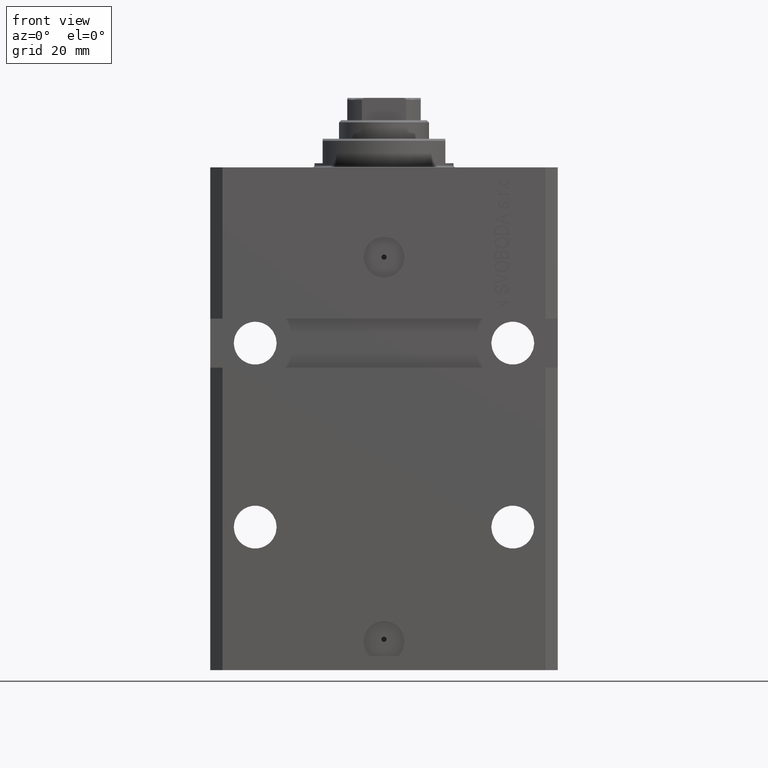
[diagram: clean part render]
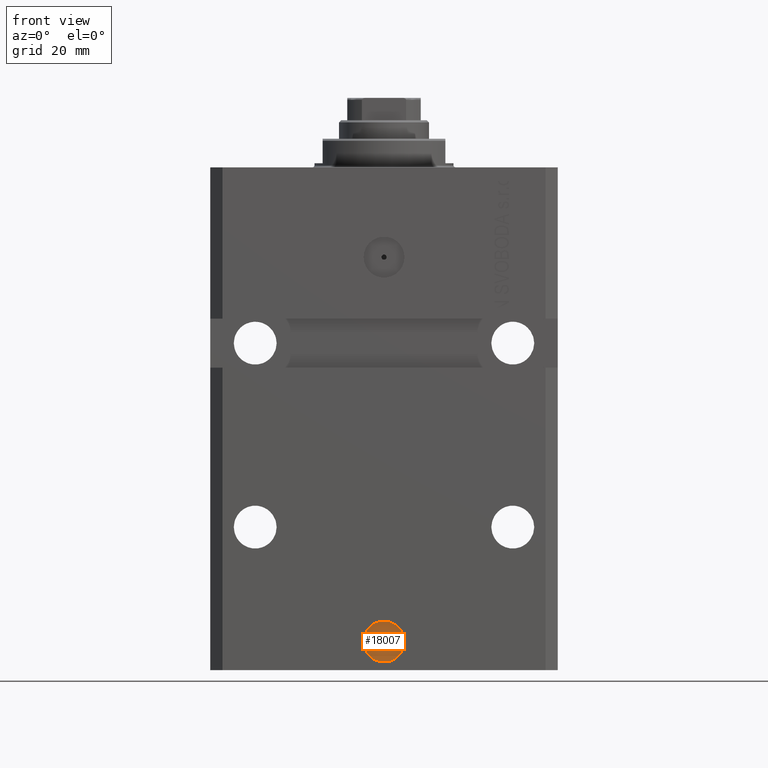
[diagram: same view with one face highlighted and labeled with its STEP entity id]
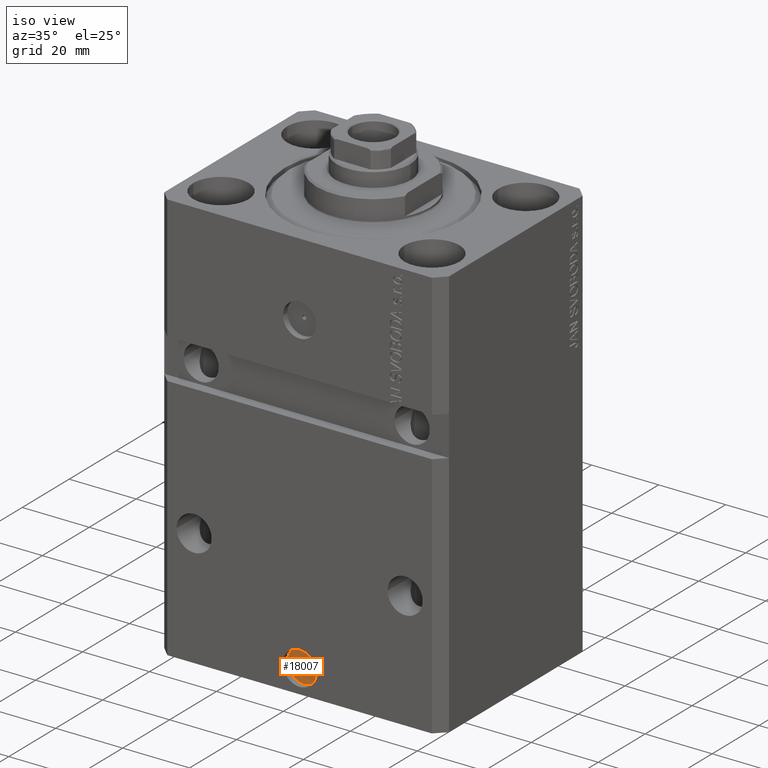
[diagram: same view with one face highlighted and labeled with its STEP entity id]
A machine part, front view. The second image highlights one B-rep face of the part: STEP entity #18007.
A second angle (iso view) of the same face is appended — the face is thin or edge-on in the first view.
In plain terms, the highlighted planar face has unit normal (0, -1, 0).
Its self-contained STEP definition (entity closure, byte-faithful):
#497 = DIRECTION ( 'NONE',  ( 1.176083712526788232E-16, -1.000000000000000000, 0.000000000000000000 ) ) ;
#1121 = EDGE_CURVE ( 'NONE', #34374, #30587, #44148, .T. ) ;
#3048 = FACE_BOUND ( 'NONE', #22642, .T. ) ;
#6240 = CARTESIAN_POINT ( 'NONE',  ( -2.234559053800897838E-16, -29.60000000000000142, -115.9999999999999858 ) ) ;
#8329 = CARTESIAN_POINT ( 'NONE',  ( -0.6250000000000002220, -29.60000000000000142, -115.4749999999999943 ) ) ;
#8542 = DIRECTION ( 'NONE',  ( 1.000000000000000000, 0.000000000000000000, 0.000000000000000000 ) ) ;
#9150 = DIRECTION ( 'NONE',  ( 1.176083712526788232E-16, -1.000000000000000000, 0.000000000000000000 ) ) ;
#9399 = AXIS2_PLACEMENT_3D ( 'NONE', #24642, #35802, #39458 ) ;
#9660 = FACE_OUTER_BOUND ( 'NONE', #10093, .T. ) ;
#10093 = EDGE_LOOP ( 'NONE', ( #13156, #28127 ) ) ;
#12309 = ORIENTED_EDGE ( 'NONE', *, *, #37941, .F. ) ;
#12353 = AXIS2_PLACEMENT_3D ( 'NONE', #37689, #497, #8542 ) ;
#13156 = ORIENTED_EDGE ( 'NONE', *, *, #44158, .T. ) ;
#15931 = DIRECTION ( 'NONE',  ( 1.000000000000000000, 0.000000000000000000, 0.000000000000000000 ) ) ;
#16006 = CIRCLE ( 'NONE', #43917, 0.6250000000000036637 ) ;
#16169 = CARTESIAN_POINT ( 'NONE',  ( 3.481207789079292456E-15, -29.60000000000000142, -115.4749999999999943 ) ) ;
#16893 = DIRECTION ( 'NONE',  ( 1.176083712526788232E-16, -1.000000000000000000, 0.000000000000000000 ) ) ;
#17975 = CARTESIAN_POINT ( 'NONE',  ( -5.000000000000006217, -29.60000000000000142, -115.9999999999999858 ) ) ;
#18007 = ADVANCED_FACE ( 'NONE', ( #3048, #9660 ), #36350, .T. ) ;
#22642 = EDGE_LOOP ( 'NONE', ( #47654, #12309 ) ) ;
#22864 = AXIS2_PLACEMENT_3D ( 'NONE', #6240, #47086, #35636 ) ;
#23950 = CARTESIAN_POINT ( 'NONE',  ( 0.6250000000000072164, -29.60000000000000142, -115.4749999999999943 ) ) ;
#24642 = CARTESIAN_POINT ( 'NONE',  ( -2.234559053800897838E-16, -29.60000000000000142, -115.9999999999999858 ) ) ;
#25514 = AXIS2_PLACEMENT_3D ( 'NONE', #27612, #9150, #39509 ) ;
#26278 = CIRCLE ( 'NONE', #25514, 0.6250000000000036637 ) ;
#27612 = CARTESIAN_POINT ( 'NONE',  ( 3.481207789079292456E-15, -29.60000000000000142, -115.4749999999999943 ) ) ;
#27864 = EDGE_CURVE ( 'NONE', #39307, #32803, #16006, .T. ) ;
#28127 = ORIENTED_EDGE ( 'NONE', *, *, #1121, .T. ) ;
#30325 = CIRCLE ( 'NONE', #9399, 5.000000000000006217 ) ;
#30587 = VERTEX_POINT ( 'NONE', #35741 ) ;
#32803 = VERTEX_POINT ( 'NONE', #8329 ) ;
#34374 = VERTEX_POINT ( 'NONE', #17975 ) ;
#35636 = DIRECTION ( 'NONE',  ( 1.000000000000000000, 1.176083712526788232E-16, 0.000000000000000000 ) ) ;
#35741 = CARTESIAN_POINT ( 'NONE',  ( 5.000000000000006217, -29.60000000000000142, -115.9999999999999858 ) ) ;
#35802 = DIRECTION ( 'NONE',  ( 1.176083712526788232E-16, -1.000000000000000000, 0.000000000000000000 ) ) ;
#36350 = PLANE ( 'NONE',  #22864 ) ;
#37689 = CARTESIAN_POINT ( 'NONE',  ( -2.234559053800897838E-16, -29.60000000000000142, -115.9999999999999858 ) ) ;
#37941 = EDGE_CURVE ( 'NONE', #32803, #39307, #26278, .T. ) ;
#39307 = VERTEX_POINT ( 'NONE', #23950 ) ;
#39458 = DIRECTION ( 'NONE',  ( 1.000000000000000000, 0.000000000000000000, 0.000000000000000000 ) ) ;
#39509 = DIRECTION ( 'NONE',  ( 1.000000000000000000, 0.000000000000000000, 0.000000000000000000 ) ) ;
#43917 = AXIS2_PLACEMENT_3D ( 'NONE', #16169, #16893, #15931 ) ;
#44148 = CIRCLE ( 'NONE', #12353, 5.000000000000006217 ) ;
#44158 = EDGE_CURVE ( 'NONE', #30587, #34374, #30325, .T. ) ;
#47086 = DIRECTION ( 'NONE',  ( 1.176083712526788232E-16, -1.000000000000000000, 0.000000000000000000 ) ) ;
#47654 = ORIENTED_EDGE ( 'NONE', *, *, #27864, .F. ) ;